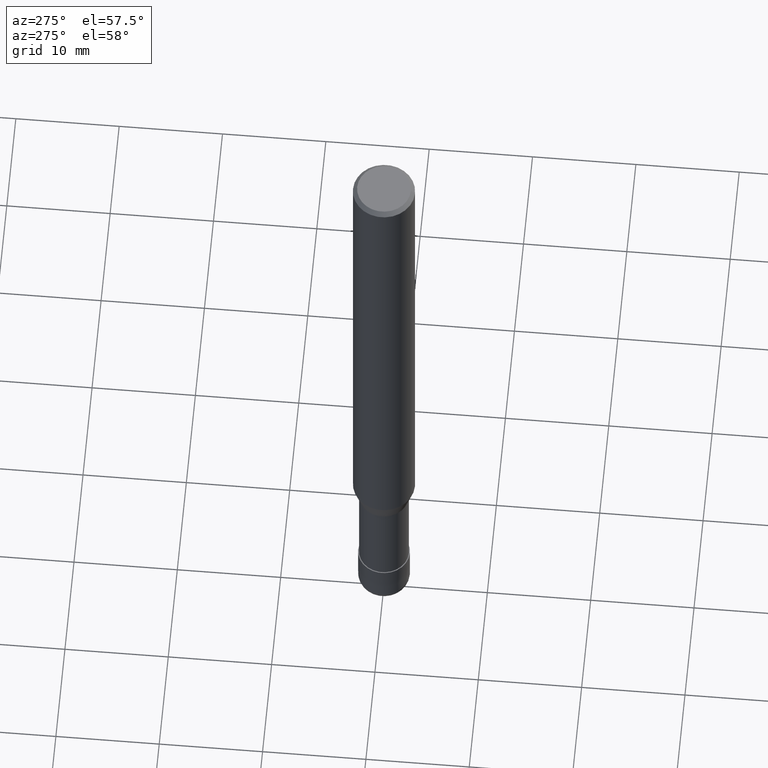
[diagram: clean part render]
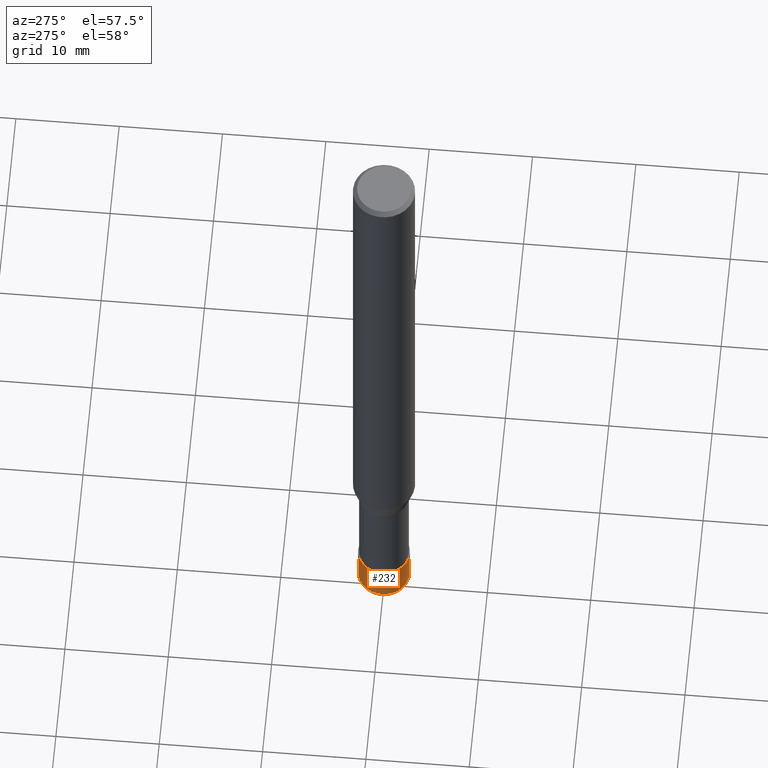
[diagram: same view with one face highlighted and labeled with its STEP entity id]
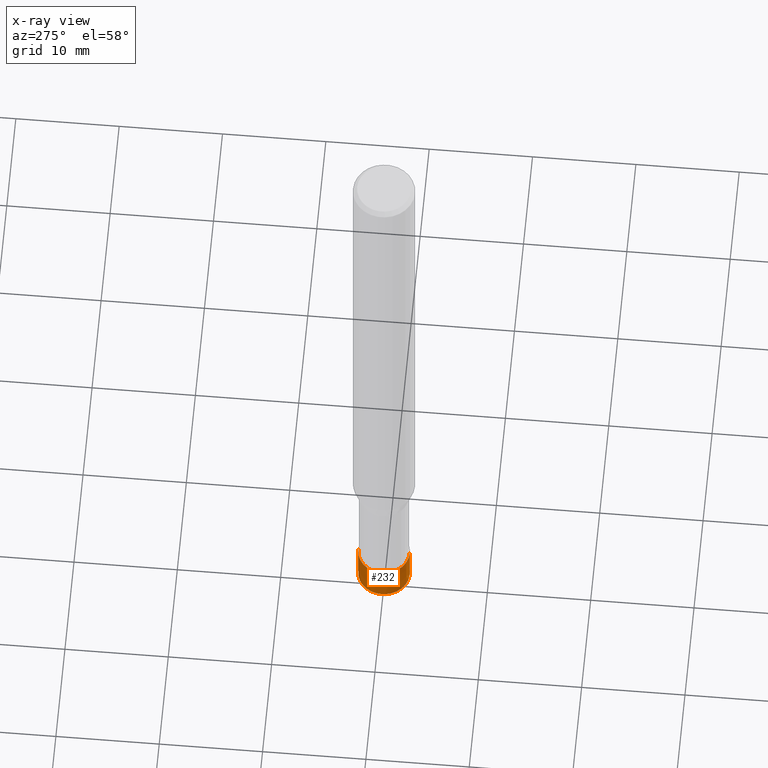
[diagram: x-ray of the same camera — body ghosted, the highlighted face saturated]
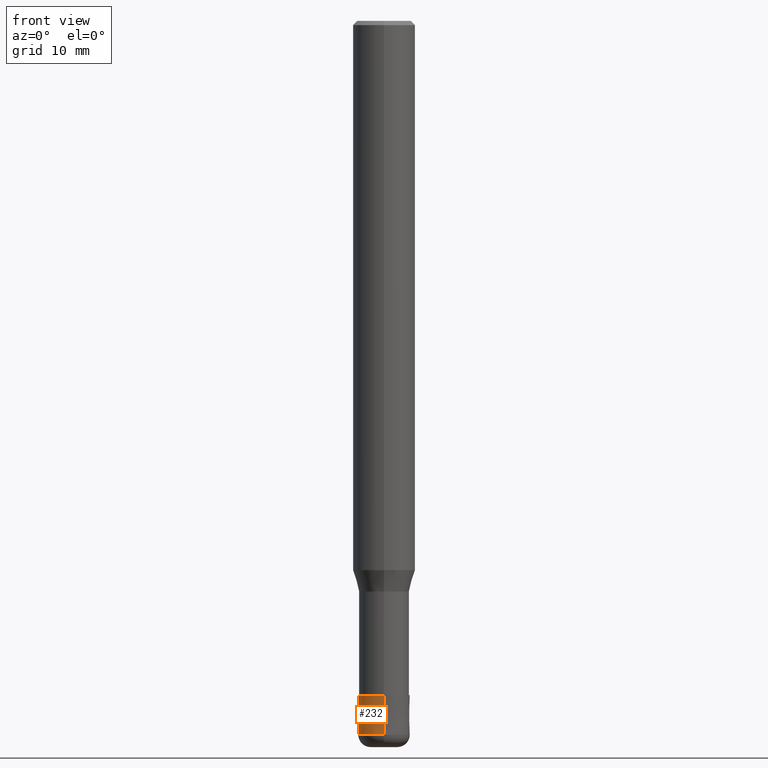
[diagram: same view with one face highlighted and labeled with its STEP entity id]
A machine part, auxiliary view. The second image highlights one B-rep face of the part: STEP entity #232.
The next image is the same camera in x-ray: the body ghosted, the highlighted face saturated — about 0% of this face is hidden behind the body in this view.
A second angle (front view) of the same face is appended — the face is thin or edge-on in the first view.
In plain terms, the highlighted conical surface has half-angle 0.002 deg.
Its self-contained STEP definition (entity closure, byte-faithful):
#146=VERTEX_POINT('',#308);
#148=VERTEX_POINT('',#310);
#152=VERTEX_POINT('',#314);
#158=EDGE_CURVE('',#146,#148,#321,.T.);
#162=VERTEX_POINT('',#325);
#178=EDGE_CURVE('',#148,#162,#343,.T.);
#182=EDGE_CURVE('',#146,#152,#347,.T.);
#194=EDGE_CURVE('',#162,#152,#361,.T.);
#232=ADVANCED_FACE('',(#402),#403,.T.);
#308=CARTESIAN_POINT('',(3.06151588455594E-016,-2.5,-68.8));
#310=CARTESIAN_POINT('',(3.06139342392056E-016,-2.4999,-65.0));
#314=CARTESIAN_POINT('',(0.0,2.5,-68.8));
#321=LINE('',#498,#499);
#325=CARTESIAN_POINT('',(0.0,2.4999,-65.0));
#343=CIRCLE('',#527,2.4999);
#347=CIRCLE('',#534,2.5);
#361=LINE('',#552,#553);
#402=FACE_OUTER_BOUND('',#603,.T.);
#403=CONICAL_SURFACE('',#604,2.49995,2.6315789467665E-005);
#498=CARTESIAN_POINT('',(3.06145465423825E-016,-2.49995,-66.9));
#499=VECTOR('',#691,1.0);
#527=AXIS2_PLACEMENT_3D('',#720,#721,#722);
#534=AXIS2_PLACEMENT_3D('',#724,#725,#726);
#552=CARTESIAN_POINT('',(-3.06145465423825E-016,2.49995,-66.9));
#553=VECTOR('',#752,1.0);
#603=EDGE_LOOP('',(#799,#800,#801,#802));
#604=AXIS2_PLACEMENT_3D('',#803,#804,#805);
#691=DIRECTION('',(-3.2226482984235E-021,2.63157894646276E-005,0.99999999965374));
#720=CARTESIAN_POINT('',(0.0,0.0,-65.0));
#721=DIRECTION('',(0.0,0.0,-1.0));
#722=DIRECTION('',(0.0,1.0,0.0));
#724=CARTESIAN_POINT('',(0.0,0.0,-68.8));
#725=DIRECTION('',(0.0,0.0,-1.0));
#726=DIRECTION('',(0.0,1.0,0.0));
#752=DIRECTION('',(-3.2226482984235E-021,2.63157894646276E-005,-0.99999999965374));
#799=ORIENTED_EDGE('',*,*,#194,.T.);
#800=ORIENTED_EDGE('',*,*,#182,.F.);
#801=ORIENTED_EDGE('',*,*,#158,.T.);
#802=ORIENTED_EDGE('',*,*,#178,.T.);
#803=CARTESIAN_POINT('',(0.0,0.0,-66.9));
#804=DIRECTION('',(0.0,-0.0,-1.0));
#805=DIRECTION('',(0.0,1.0,0.0));